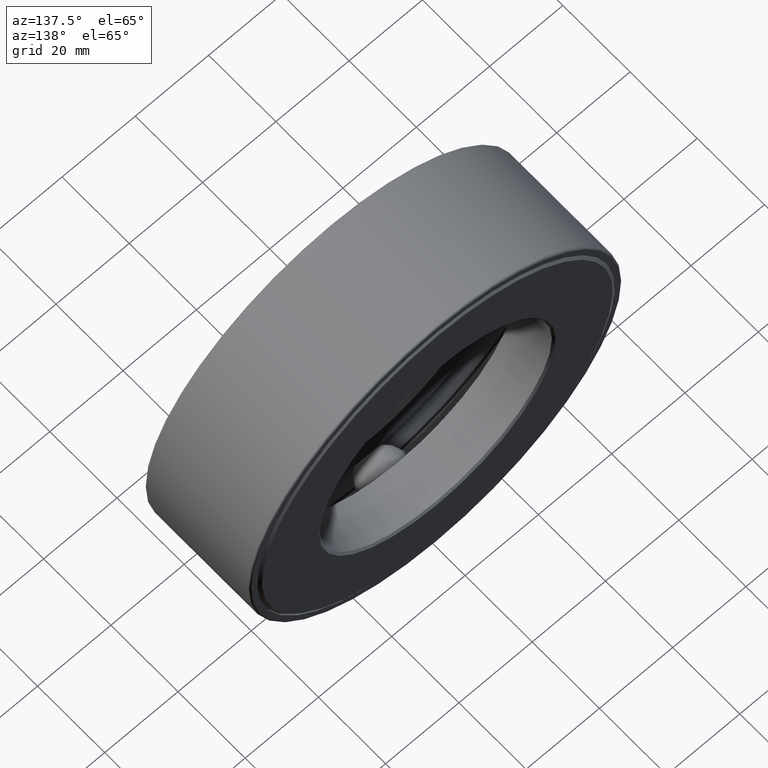
[diagram: clean part render]
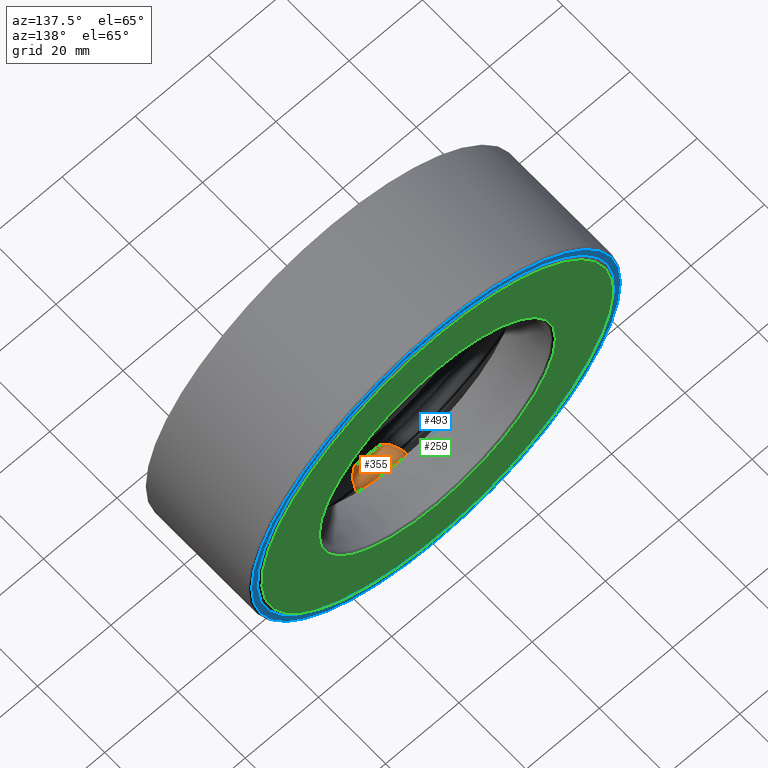
[diagram: same view with three faces highlighted in distinct colors, each labeled with its STEP entity id]
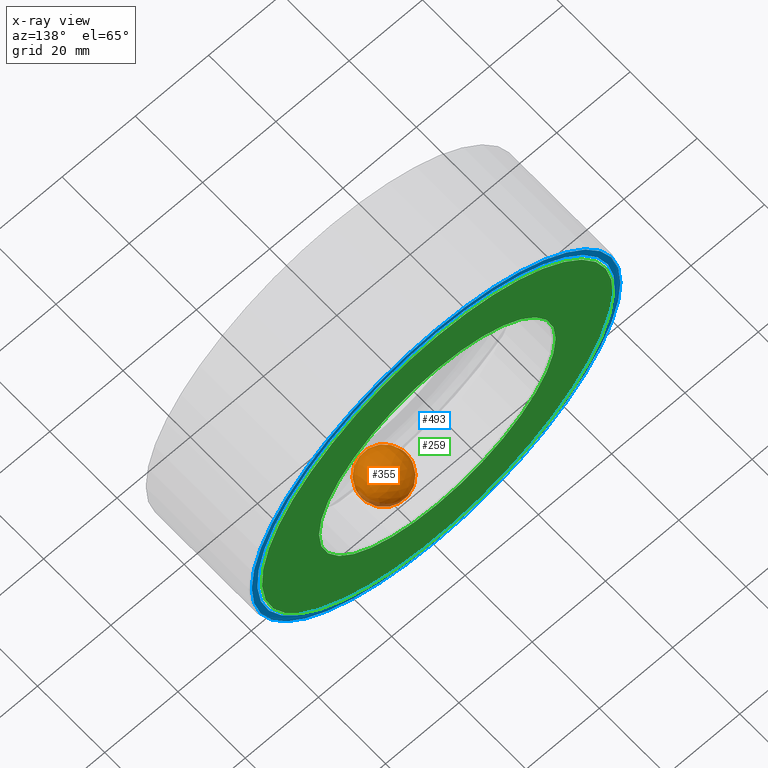
[diagram: x-ray of the same camera — body ghosted, the three highlighted faces saturated]
A machine part, auxiliary view with three faces highlighted in distinct colors.
The next image is the same camera in x-ray (body ghosted, the three faces saturated) — at least one of them is partly hidden behind the body in this view.
Their STEP definitions:

[orange] entity #355 — the highlighted spherical surface has radius 6.35 mm.
#91 = SPHERICAL_SURFACE ( 'NONE', #304, 0.2500000000000000600 ) ;
#130 = DIRECTION ( 'NONE',  ( -1.000000000000000000, 0.0000000000000000000, 1.047444401652940800E-014 ) ) ;
#304 = AXIS2_PLACEMENT_3D ( 'NONE', #481, #130, #587 ) ;
#355 = ADVANCED_FACE ( 'NONE', ( ), #91, .T. ) ;
#481 = CARTESIAN_POINT ( 'NONE',  ( -1.802651815244709400E-014, 0.6249999999999997800, -1.720999999999999400 ) ) ;
#587 = DIRECTION ( 'NONE',  ( -1.047444401652940800E-014, 0.0000000000000000000, -1.000000000000000000 ) ) ;

[blue] entity #493 — the highlighted planar face has unit normal (0, -1, 0).
#13 = EDGE_LOOP ( 'NONE', ( #271 ) ) ;
#15 = EDGE_CURVE ( 'NONE', #489, #489, #529, .T. ) ;
#16 = PLANE ( 'NONE',  #145 ) ;
#18 = CARTESIAN_POINT ( 'NONE',  ( 0.0000000000000000000, 1.234999999999999900, 0.0000000000000000000 ) ) ;
#61 = CARTESIAN_POINT ( 'NONE',  ( 0.0000000000000000000, 1.234999999999999900, 0.0000000000000000000 ) ) ;
#112 = DIRECTION ( 'NONE',  ( -0.0000000000000000000, 1.000000000000000000, -0.0000000000000000000 ) ) ;
#116 = DIRECTION ( 'NONE',  ( 0.0000000000000000000, -0.0000000000000000000, -1.000000000000000000 ) ) ;
#144 = EDGE_LOOP ( 'NONE', ( #325 ) ) ;
#145 = AXIS2_PLACEMENT_3D ( 'NONE', #61, #571, #116 ) ;
#153 = CIRCLE ( 'NONE', #167, 1.980000000000000000 ) ;
#167 = AXIS2_PLACEMENT_3D ( 'NONE', #18, #518, #241 ) ;
#241 = DIRECTION ( 'NONE',  ( 0.0000000000000000000, 0.0000000000000000000, 1.000000000000000000 ) ) ;
#261 = CARTESIAN_POINT ( 'NONE',  ( 0.0000000000000000000, 1.234999999999999900, 1.980000000000000000 ) ) ;
#271 = ORIENTED_EDGE ( 'NONE', *, *, #597, .T. ) ;
#322 = FACE_BOUND ( 'NONE', #144, .T. ) ;
#325 = ORIENTED_EDGE ( 'NONE', *, *, #15, .F. ) ;
#369 = CARTESIAN_POINT ( 'NONE',  ( 0.0000000000000000000, 1.234999999999999900, 0.0000000000000000000 ) ) ;
#424 = CARTESIAN_POINT ( 'NONE',  ( 0.0000000000000000000, 1.234999999999999900, 1.919999999999999900 ) ) ;
#442 = AXIS2_PLACEMENT_3D ( 'NONE', #369, #112, #563 ) ;
#489 = VERTEX_POINT ( 'NONE', #424 ) ;
#493 = ADVANCED_FACE ( 'NONE', ( #322, #500 ), #16, .F. ) ;
#500 = FACE_OUTER_BOUND ( 'NONE', #13, .T. ) ;
#518 = DIRECTION ( 'NONE',  ( -0.0000000000000000000, 1.000000000000000000, -0.0000000000000000000 ) ) ;
#529 = CIRCLE ( 'NONE', #442, 1.919999999999999900 ) ;
#563 = DIRECTION ( 'NONE',  ( 0.0000000000000000000, 0.0000000000000000000, 1.000000000000000000 ) ) ;
#571 = DIRECTION ( 'NONE',  ( 0.0000000000000000000, -1.000000000000000000, 0.0000000000000000000 ) ) ;
#577 = VERTEX_POINT ( 'NONE', #261 ) ;
#597 = EDGE_CURVE ( 'NONE', #577, #577, #153, .T. ) ;

[green] entity #259 — the highlighted planar face has unit normal (-0, 1, 0).
#48 = CIRCLE ( 'NONE', #601, 1.884999999999999300 ) ;
#51 = VERTEX_POINT ( 'NONE', #73 ) ;
#73 = CARTESIAN_POINT ( 'NONE',  ( 0.0000000000000000000, 1.250000000000000200, 1.270000000000000500 ) ) ;
#105 = DIRECTION ( 'NONE',  ( 0.0000000000000000000, 0.0000000000000000000, 1.000000000000000000 ) ) ;
#110 = EDGE_LOOP ( 'NONE', ( #207 ) ) ;
#126 = DIRECTION ( 'NONE',  ( -0.0000000000000000000, 1.000000000000000000, 0.0000000000000000000 ) ) ;
#138 = VERTEX_POINT ( 'NONE', #570 ) ;
#151 = AXIS2_PLACEMENT_3D ( 'NONE', #594, #126, #105 ) ;
#173 = DIRECTION ( 'NONE',  ( 0.0000000000000000000, 0.0000000000000000000, 1.000000000000000000 ) ) ;
#207 = ORIENTED_EDGE ( 'NONE', *, *, #484, .F. ) ;
#252 = DIRECTION ( 'NONE',  ( -0.0000000000000000000, 1.000000000000000000, -0.0000000000000000000 ) ) ;
#259 = ADVANCED_FACE ( 'NONE', ( #567, #332 ), #584, .T. ) ;
#274 = EDGE_CURVE ( 'NONE', #138, #138, #48, .T. ) ;
#286 = ORIENTED_EDGE ( 'NONE', *, *, #274, .T. ) ;
#288 = DIRECTION ( 'NONE',  ( 0.0000000000000000000, 0.0000000000000000000, 1.000000000000000000 ) ) ;
#332 = FACE_BOUND ( 'NONE', #110, .T. ) ;
#335 = EDGE_LOOP ( 'NONE', ( #286 ) ) ;
#377 = CARTESIAN_POINT ( 'NONE',  ( 0.0000000000000000000, 1.250000000000000200, 0.0000000000000000000 ) ) ;
#426 = DIRECTION ( 'NONE',  ( -0.0000000000000000000, 1.000000000000000000, -0.0000000000000000000 ) ) ;
#439 = CARTESIAN_POINT ( 'NONE',  ( 0.0000000000000000000, 1.250000000000000000, 0.0000000000000000000 ) ) ;
#468 = CIRCLE ( 'NONE', #566, 1.270000000000000500 ) ;
#484 = EDGE_CURVE ( 'NONE', #51, #51, #468, .T. ) ;
#566 = AXIS2_PLACEMENT_3D ( 'NONE', #377, #426, #288 ) ;
#567 = FACE_OUTER_BOUND ( 'NONE', #335, .T. ) ;
#570 = CARTESIAN_POINT ( 'NONE',  ( 0.0000000000000000000, 1.250000000000000000, 1.884999999999999300 ) ) ;
#584 = PLANE ( 'NONE',  #151 ) ;
#594 = CARTESIAN_POINT ( 'NONE',  ( -5.552536572488354000E-016, 1.250000000000000000, 0.0000000000000000000 ) ) ;
#601 = AXIS2_PLACEMENT_3D ( 'NONE', #439, #252, #173 ) ;